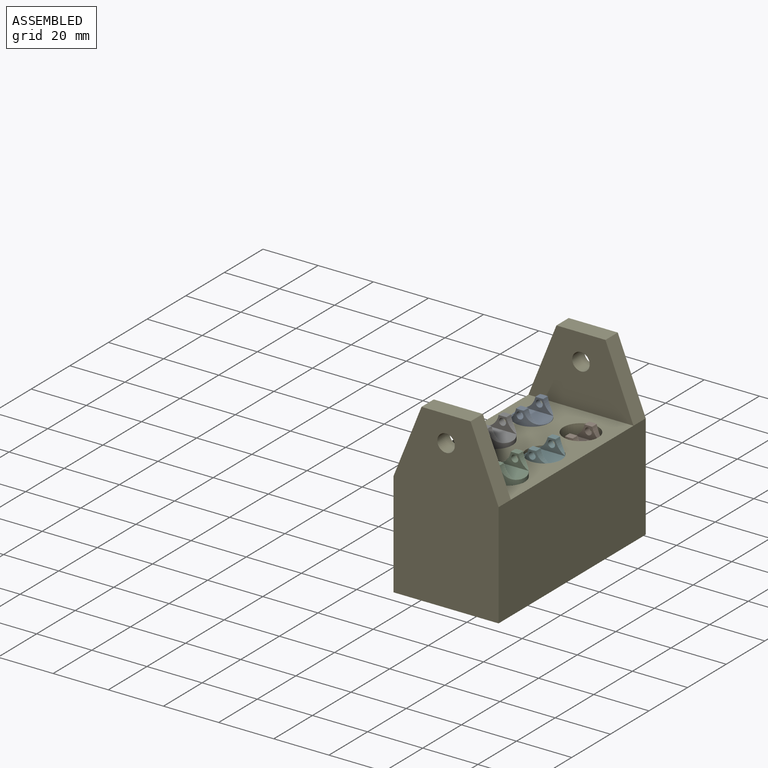
[diagram: assembled view]
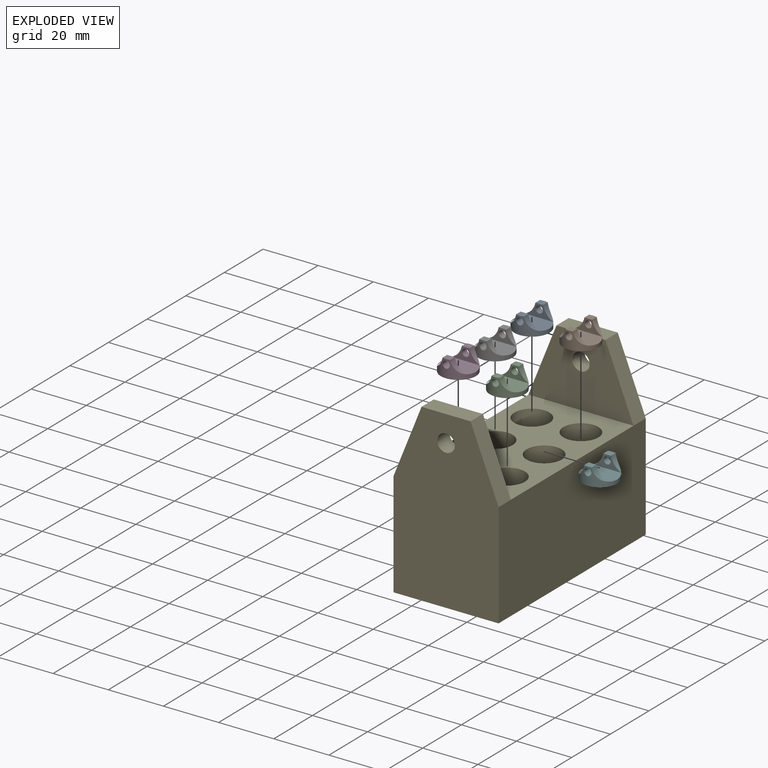
[diagram: exploded view]
GUIDED TOUR — MATED ASSEMBLY (Onshape document 027a641c59801a9dba8c58a0, AutoMate assembly 027a641c59801a9dba8c58a0_f3b62f6400cd788a0580ad58_e7f41061938ddfcc41506e2b_default)

This assembly has 7 components, labeled P0..P6 below (a component is one placed occurrence of a part; the same part can appear more than once), held together by 5 mates. A mate is a constraint between two components; its type names the relative motion it leaves free:
  SLIDER — leaves translation along the listed axis free.
Axis/direction vectors are unit vectors and 'through' points are millimeter coordinates, both in the assembly's world frame.

MATES
  1. SLIDER "Slider 4": P6 <-> P4, axis (0.000, 0.000, -1.000) through (-17.78, 0.00, 0.00) mm
  2. SLIDER "Slider 5": P2 <-> P4, axis (0.000, 0.000, -1.000) through (0.00, -19.05, 0.00) mm
  3. SLIDER "Slider 6": P3 <-> P4, axis (0.000, 0.000, -1.000) through (-17.78, -19.05, -3.06) mm
  4. SLIDER "Slider 3": P0 <-> P4, axis (0.000, 0.000, -1.000) through (-17.78, 19.05, -1.30) mm
  5. SLIDER "Slider 1": P1 <-> P4, axis (0.000, 0.000, -1.000) through (0.00, 19.05, -5.63) mm

ASSEMBLY ORDER
  1. P5 — the base component [order verified]
  2. P3 [order verified]
  3. P0 [order verified]
  4. P4 [order verified]
  5. P1 [order verified]
  6. P6 [order verified]
  7. P2 [order verified]
Order-tag legend:
  [order verified] — this step's position reverses a verified removal order: the component was checked to insert without passing through the ones already placed.

Of the 7 components, 1 carries the full construction recipe — the FeatureScript program that regenerates the part's solid from scratch; the rest are supplied as boundary geometry only.
Each toured component is shown spotlighted twice — in the assembled view, then in the exploded view, where a leader line traces a displaced component back to its assembled socket (saturated green if recipe-attached, orange if geometry-only; every other component desaturated gray) — followed by its recipe or geometry summary and the mates that hold it.
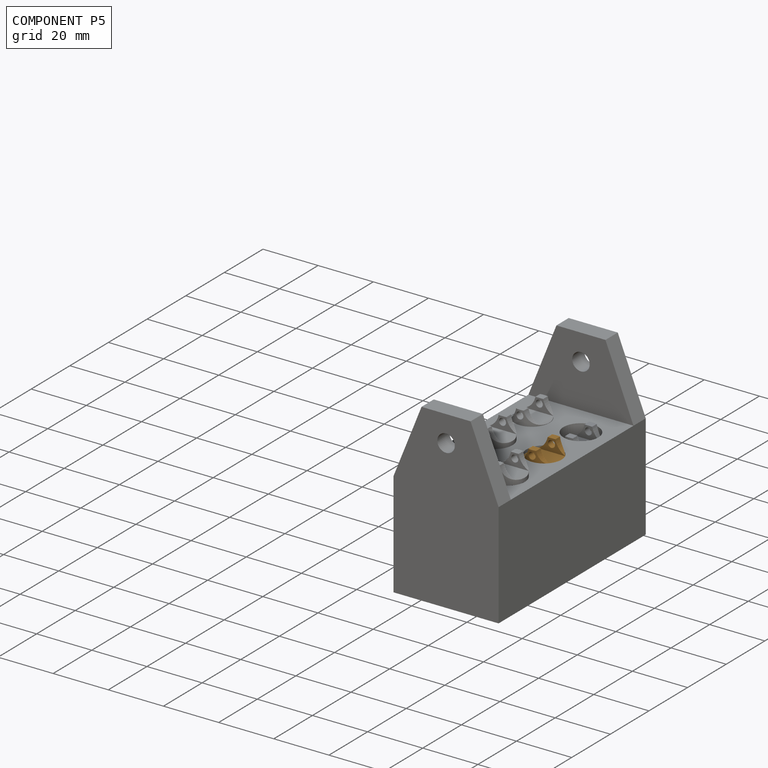
[diagram: component P5 — assembled]
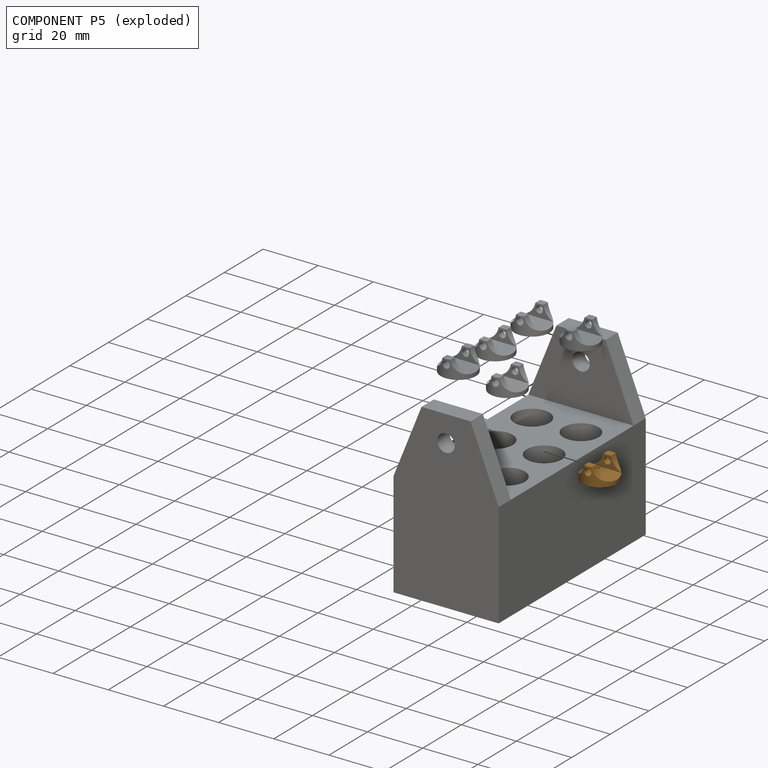
[diagram: component P5 — exploded]
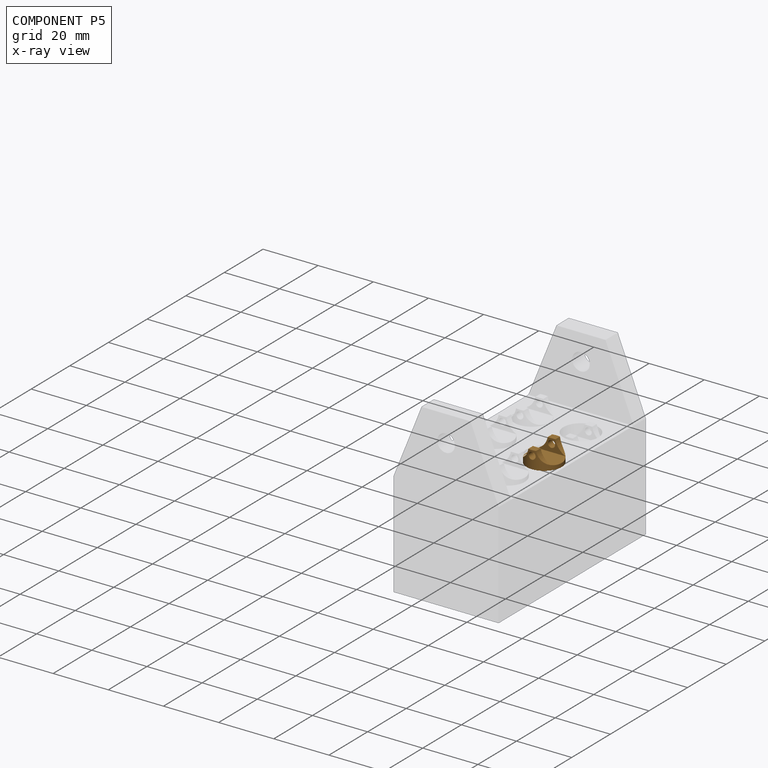
[diagram: component P5 — x-ray view]
COMPONENT P5 — geometry summary (no construction recipe available for this part):
  bounding box: 12.7 x 12.7 x 6.4 mm
  B-rep topology: 1 solid, 15 faces, 84 edges
  volume: 306 mm^3 (30% of its bounding box)
  symmetry: 2-fold rotationally symmetric about the z axis; mirror-symmetric across its x mid-plane, y mid-plane
Held by: no mates (free).
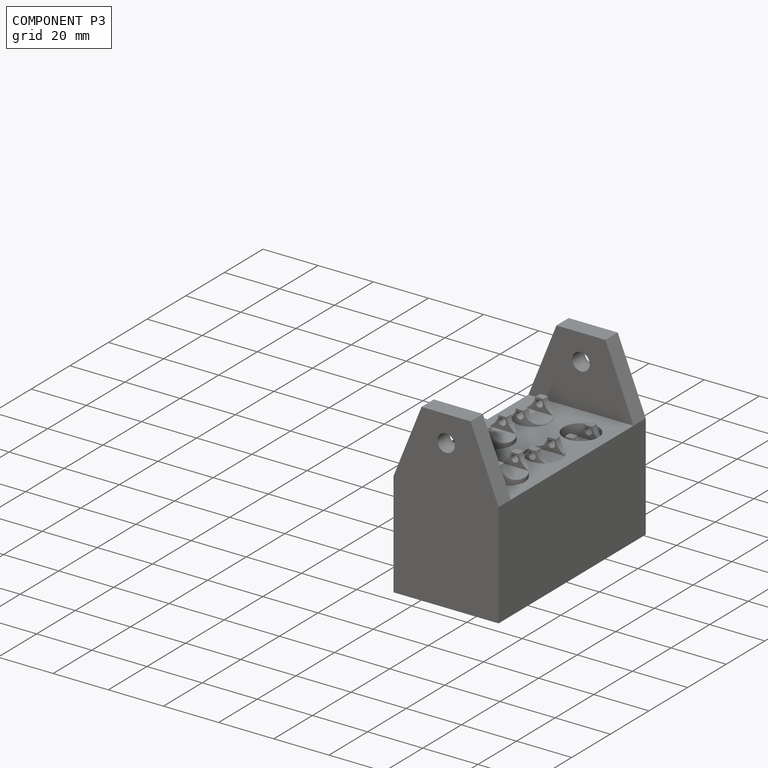
[diagram: component P3 — assembled]
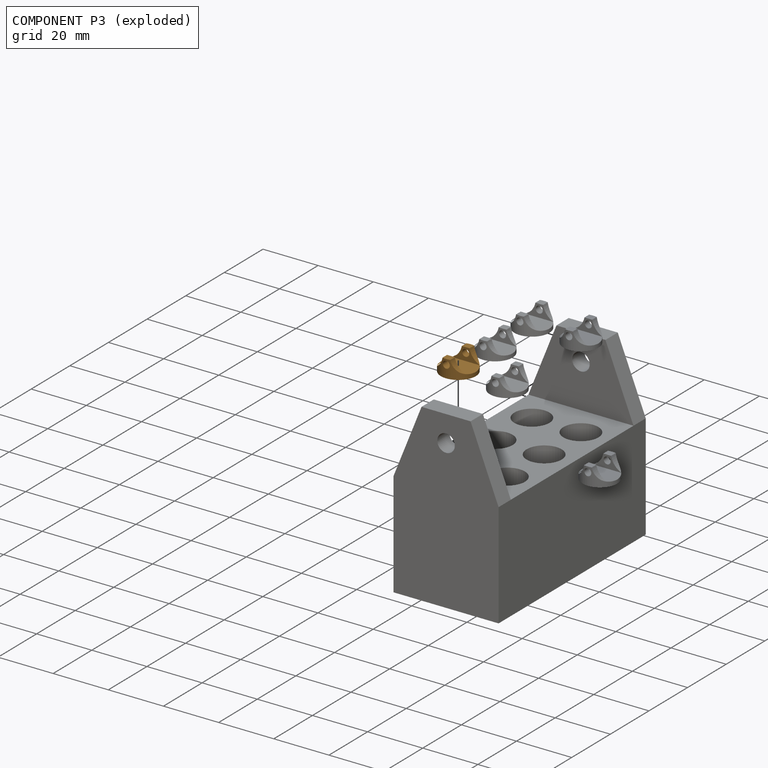
[diagram: component P3 — exploded]
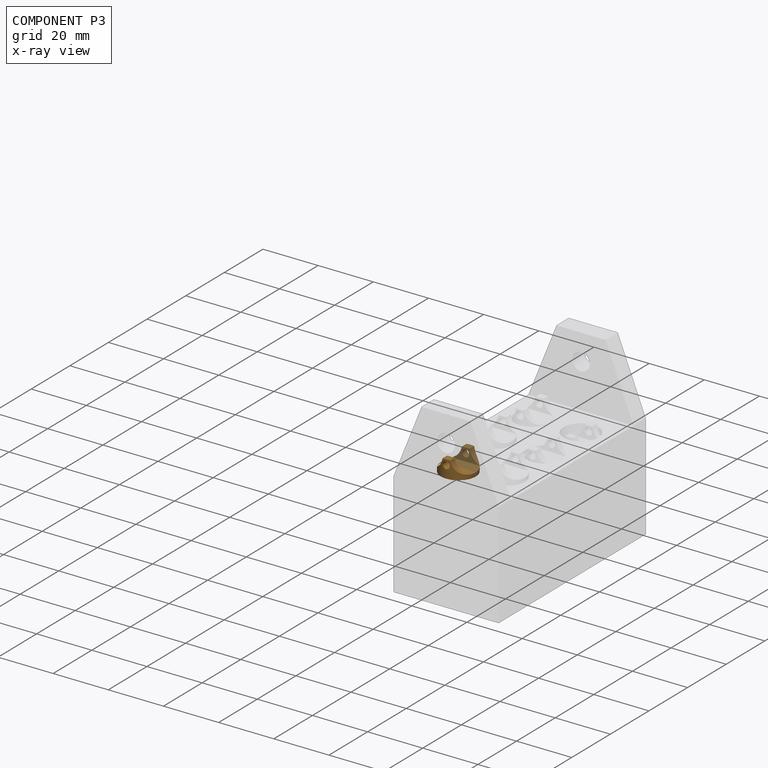
[diagram: component P3 — x-ray view]
COMPONENT P3 — geometry summary (no construction recipe available for this part):
  bounding box: 12.7 x 12.7 x 6.4 mm
  B-rep topology: 1 solid, 15 faces, 84 edges
  volume: 306 mm^3 (30% of its bounding box)
  symmetry: 2-fold rotationally symmetric about the z axis; mirror-symmetric across its x mid-plane, y mid-plane
Held by: SLIDER mate "Slider 6" to P4.
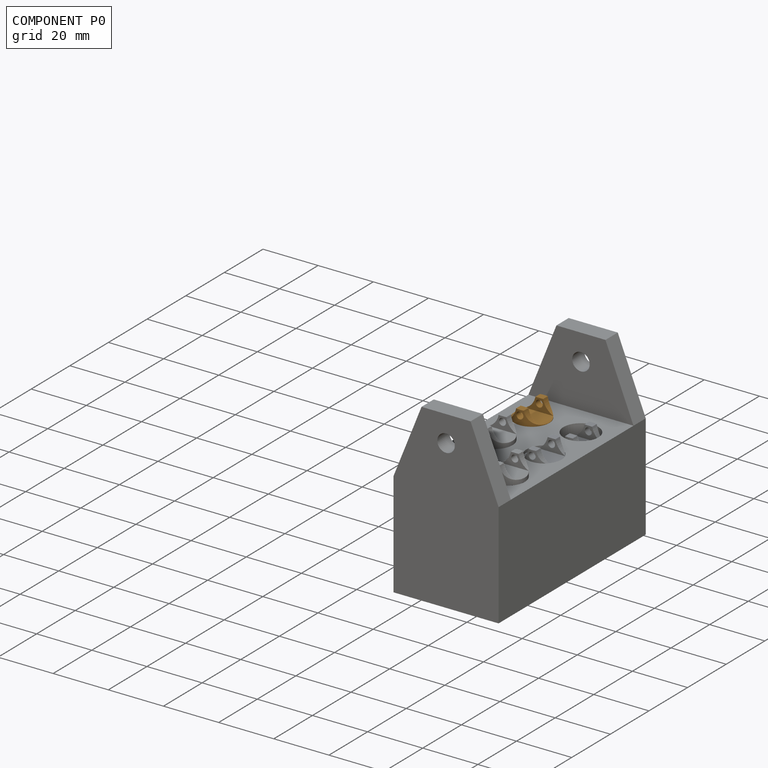
[diagram: component P0 — assembled]
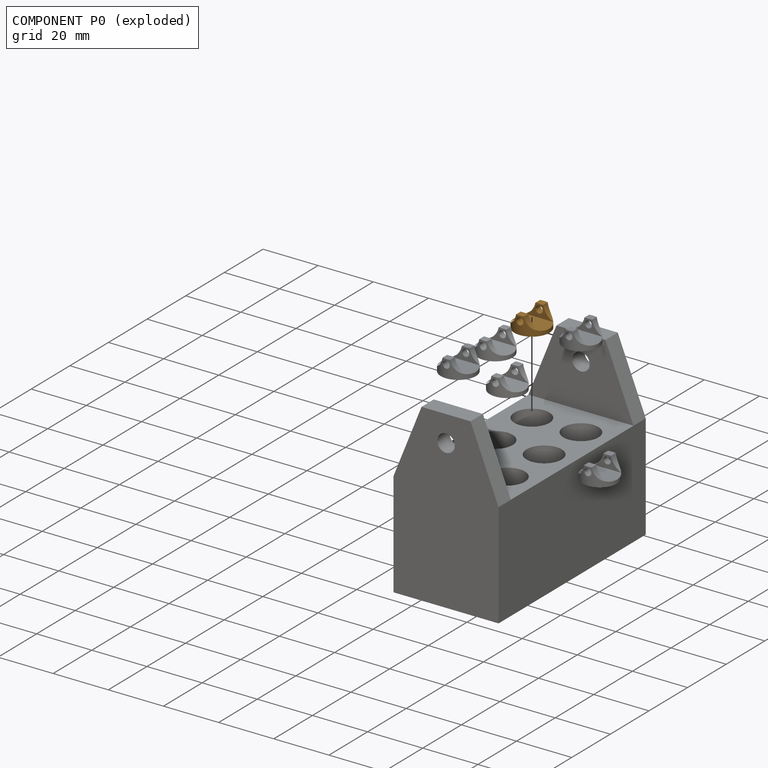
[diagram: component P0 — exploded]
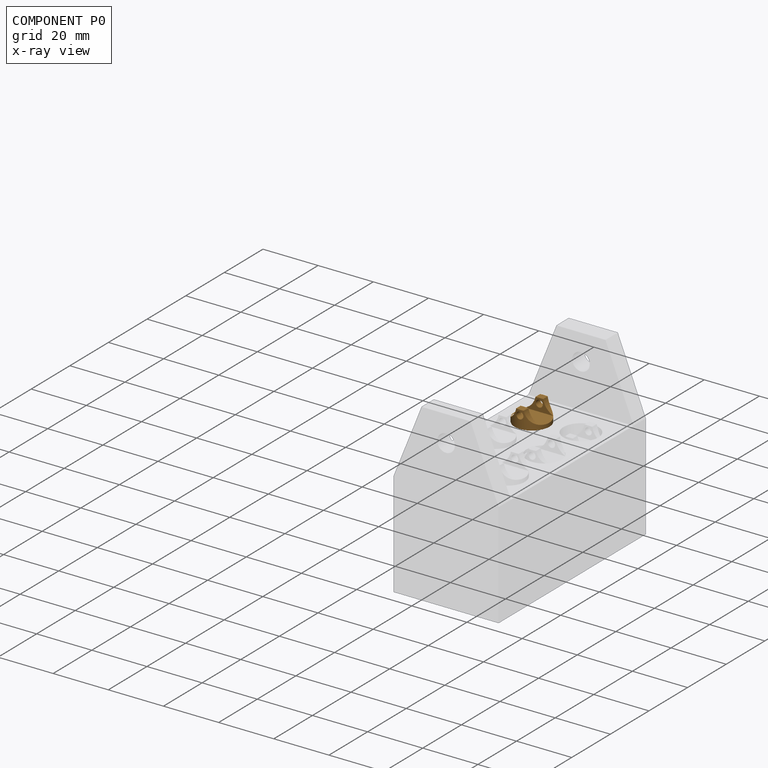
[diagram: component P0 — x-ray view]
COMPONENT P0 — geometry summary (no construction recipe available for this part):
  bounding box: 12.7 x 12.7 x 6.4 mm
  B-rep topology: 1 solid, 15 faces, 84 edges
  volume: 306 mm^3 (30% of its bounding box)
  symmetry: 2-fold rotationally symmetric about the z axis; mirror-symmetric across its x mid-plane, y mid-plane
Held by: SLIDER mate "Slider 3" to P4.
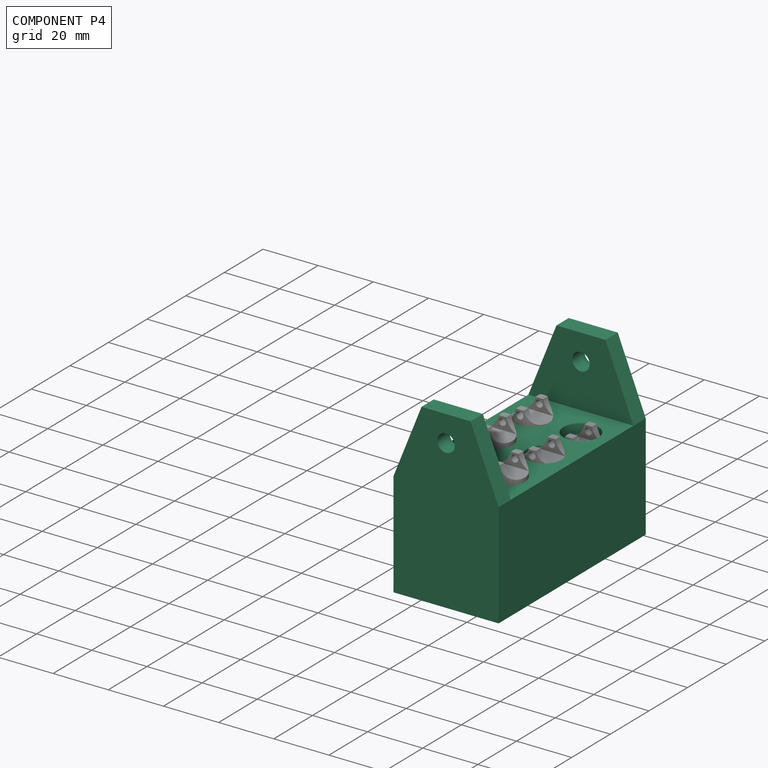
[diagram: component P4 — assembled]
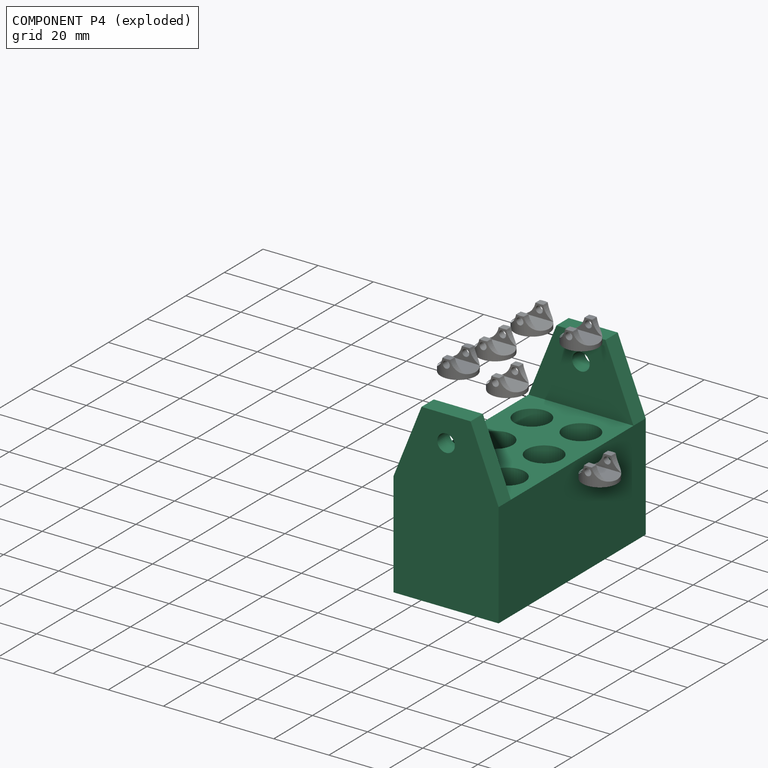
[diagram: component P4 — exploded]
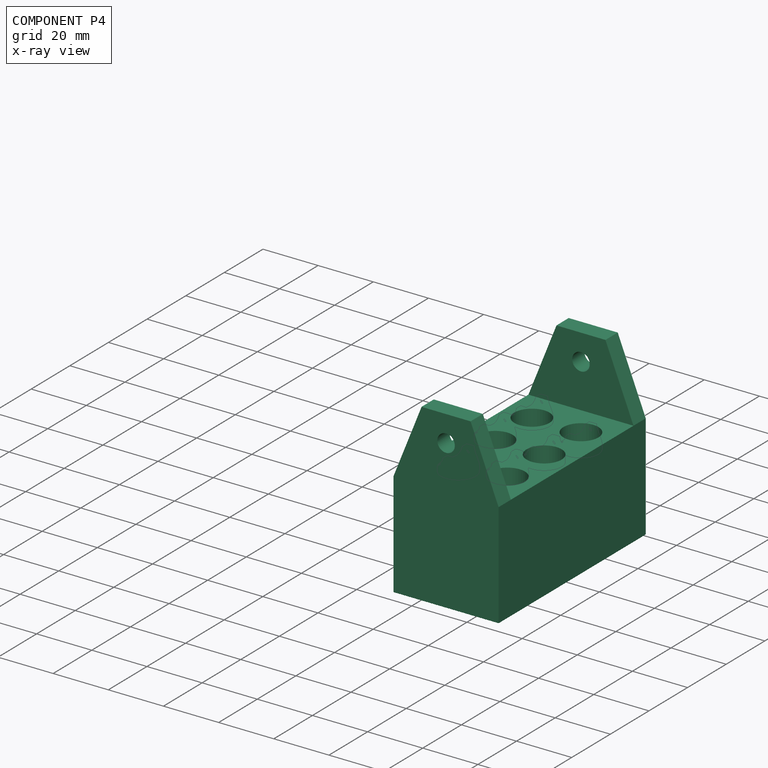
[diagram: component P4 — x-ray view]
COMPONENT P4 — recipe-attached (CADFS 00143169, mesh-verified: the recipe's output STEP matches this component's geometry to below the mesh-comparison resolution (tessellation chordal tolerance ~0.159 mm)).
Held by: SLIDER mate "Slider 4" to P6; SLIDER mate "Slider 5" to P2; SLIDER mate "Slider 6" to P3; SLIDER mate "Slider 3" to P0; SLIDER mate "Slider 1" to P1.
Construction recipe (FeatureScript — the CAD program that rebuilds this solid; sketch coordinates are in the units given by the * unit suffixes, e.g. mm):

FeatureScript 1511;
import(path : "onshape/std/geometry.fs", version : "1511.0");
import(path : "onshape/std/common.fs", version : "1511.0");
const mm = millimeter;
const VERTEX = EntityType.VERTEX;
const EDGE = EntityType.EDGE;
const FACE = EntityType.FACE;
const BODY = EntityType.BODY;
function v(x, y){return vector(x, y);}
function OD(order){return orderDisambiguation(order);}
function OSD(set){return originalSetDisambiguation(set);}
function TD(topology){return topologyDisambiguation(topology);}
function TDD(query){return trueDependencyDisambiguation(query);}
function sQuery(a, b, c) {return sketchEntityQuery(a, b, c);}

annotation { "Feature Type Name" : "Feature", "Feature Type Description" : "" }
export const myFeature = defineFeature(function(context is Context, id is Id, definition is map)
    precondition{}
    {
        {
            var Q0;
            Q0=qCreatedBy(makeId("Top.planeOp"),FACE);
            var sketch = newSketch(context, id + "F0", { "sketchPlane" : qUnion([Q0])});
            skLineSegment(sketch, "E0.bottom", {"start": v(0, 0) * mm, "end": v(38.1, 0) * mm});
            skLineSegment(sketch, "E0.top", {"start": v(0, 76.2) * mm, "end": v(38.1, 76.2) * mm});
            skLineSegment(sketch, "E0.left", {"start": v(0, 0) * mm, "end": v(0, 76.2) * mm});
            skLineSegment(sketch, "E0.right", {"start": v(38.1, 0) * mm, "end": v(38.1, 76.2) * mm});
            skCircle(sketch, "E1", {"center": v(10.16, 38.1) * mm, "radius": 6.35 * mm});
            skCircle(sketch, "E2", {"center": v(10.16, 57.15) * mm, "radius": 6.35 * mm});
            skCircle(sketch, "E3", {"center": v(10.16, 19.05) * mm, "radius": 6.35 * mm});
            skCircle(sketch, "E4", {"center": v(27.94, 19.05) * mm, "radius": 6.35 * mm});
            skCircle(sketch, "E5", {"center": v(27.94, 38.1) * mm, "radius": 6.35 * mm});
            skCircle(sketch, "E6", {"center": v(27.94, 57.15) * mm, "radius": 6.35 * mm});
            skSolve(sketch);
        }
        {
            var Q0;
            Q0=makeQuery(id+"F0.imprint","IMPRINT",FACE,{"disambiguationData":[TD([[makeQuery(id+"F0.imprint","IMPRINT",EDGE,{"derivedFrom":sQuery(id+"F0.wireOp",EDGE,"E0.bottom")}),1.0]])]});
            extrude(context, id + "F1", {"entities" : qUnion([Q0]), "depth" : 38.1 * mm});
        }
        {
            var Q0;
            Q0=makeQuery(id+"F0.imprint","IMPRINT",FACE,{"disambiguationData":[TD([[makeQuery(id+"F0.imprint","IMPRINT",EDGE,{"derivedFrom":sQuery(id+"F0.wireOp",EDGE,"E2")}),1.0]])]});
            var Q1;
            Q1=makeQuery(id+"F0.imprint","IMPRINT",FACE,{"disambiguationData":[TD([[makeQuery(id+"F0.imprint","IMPRINT",EDGE,{"derivedFrom":sQuery(id+"F0.wireOp",EDGE,"E6")}),1.0]])]});
            var Q2;
            Q2=makeQuery(id+"F0.imprint","IMPRINT",FACE,{"disambiguationData":[TD([[makeQuery(id+"F0.imprint","IMPRINT",EDGE,{"derivedFrom":sQuery(id+"F0.wireOp",EDGE,"E5")}),1.0]])]});
            var Q3;
            Q3=makeQuery(id+"F0.imprint","IMPRINT",FACE,{"disambiguationData":[TD([[makeQuery(id+"F0.imprint","IMPRINT",EDGE,{"derivedFrom":sQuery(id+"F0.wireOp",EDGE,"E3")}),1.0]])]});
            var Q4;
            Q4=makeQuery(id+"F0.imprint","IMPRINT",FACE,{"disambiguationData":[TD([[makeQuery(id+"F0.imprint","IMPRINT",EDGE,{"derivedFrom":sQuery(id+"F0.wireOp",EDGE,"E4")}),1.0]])]});
            var Q5;
            Q5=makeQuery(id+"F0.imprint","IMPRINT",FACE,{"disambiguationData":[TD([[makeQuery(id+"F0.imprint","IMPRINT",EDGE,{"derivedFrom":sQuery(id+"F0.wireOp",EDGE,"E1")}),1.0]])]});
            extrude(context, id + "F2", {"entities" : qUnion([Q0, Q1, Q2, Q3, Q4, Q5]), "operationType" : NewBodyOperationType.ADD, "depth" : 12.7 * mm});
        }
        {
            var Q0;
            Q0=makeQuery(id+"F1.opExtrude","CAP_FACE",FACE,{"disambiguationData":[OSD([sQuery(id+"F0.wireOp",EDGE,"E0.bottom"),sQuery(id+"F0.wireOp",EDGE,"E0.top"),sQuery(id+"F0.wireOp",EDGE,"E0.left"),sQuery(id+"F0.wireOp",EDGE,"E0.right"),sQuery(id+"F0.wireOp",EDGE,"E1"),sQuery(id+"F0.wireOp",EDGE,"E2"),sQuery(id+"F0.wireOp",EDGE,"E3"),sQuery(id+"F0.wireOp",EDGE,"E4"),sQuery(id+"F0.wireOp",EDGE,"E5"),sQuery(id+"F0.wireOp",EDGE,"E6")])],"isStart":false});
            var sketch = newSketch(context, id + "F3", { "sketchPlane" : qUnion([Q0])});
            skLineSegment(sketch, "E7.bottom", {"start": v(0, 0) * mm, "end": v(38.1, 0) * mm});
            skLineSegment(sketch, "E7.top", {"start": v(0, 6.35) * mm, "end": v(38.1, 6.35) * mm});
            skLineSegment(sketch, "E7.left", {"start": v(0, 0) * mm, "end": v(0, 6.35) * mm});
            skLineSegment(sketch, "E7.right", {"start": v(38.1, 0) * mm, "end": v(38.1, 6.35) * mm});
            skLineSegment(sketch, "E8.bottom", {"start": v(0, 76.2) * mm, "end": v(38.1, 76.2) * mm});
            skLineSegment(sketch, "E8.top", {"start": v(0, 69.85) * mm, "end": v(38.1, 69.85) * mm});
            skLineSegment(sketch, "E8.left", {"start": v(0, 76.2) * mm, "end": v(0, 69.85) * mm});
            skLineSegment(sketch, "E8.right", {"start": v(38.1, 76.2) * mm, "end": v(38.1, 69.85) * mm});
            skSolve(sketch);
        }
        {
            var Q0;
            Q0=makeQuery(id+"F3.imprint","IMPRINT",FACE,{"disambiguationData":[TD([[makeQuery(id+"F3.imprint","IMPRINT",EDGE,{"derivedFrom":sQuery(id+"F3.wireOp",EDGE,"E8.bottom")}),-1.0]])]});
            var Q1;
            Q1=makeQuery(id+"F3.imprint","IMPRINT",FACE,{"disambiguationData":[TD([[makeQuery(id+"F3.imprint","IMPRINT",EDGE,{"derivedFrom":sQuery(id+"F3.wireOp",EDGE,"E7.bottom")}),1.0]])]});
            extrude(context, id + "F4", {"entities" : qUnion([Q0, Q1]), "operationType" : NewBodyOperationType.ADD, "depth" : 25.4 * mm});
        }
        {
            var Q0;
            Q0=makeQuery(id+"F4.opExtrude","CAP_EDGE",EDGE,{"disambiguationData":[OSD([sQuery(id+"F3.wireOp",EDGE,"E8.right")])],"isStart":false});
            var Q1;
            Q1=makeQuery(id+"F4.opExtrude","CAP_EDGE",EDGE,{"disambiguationData":[OSD([sQuery(id+"F3.wireOp",EDGE,"E8.left")])],"isStart":false});
            chamfer(context, id + "F5", {"entities" : qUnion([Q0, Q1]), "chamferType" : ChamferType.TWO_OFFSETS, "width1" : 25.4 * mm, "oppositeDirection" : true, "width2" : 10.16 * mm, "tangentPropagation" : true});
        }
        {
            var Q0;
            Q0=makeQuery(id+"F4.opExtrude","CAP_EDGE",EDGE,{"disambiguationData":[OSD([sQuery(id+"F3.wireOp",EDGE,"E7.right")])],"isStart":false});
            var Q1;
            Q1=makeQuery(id+"F4.opExtrude","CAP_EDGE",EDGE,{"disambiguationData":[OSD([sQuery(id+"F3.wireOp",EDGE,"E7.left")])],"isStart":false});
            chamfer(context, id + "F6", {"entities" : qUnion([Q0, Q1]), "chamferType" : ChamferType.TWO_OFFSETS, "width1" : 25.4 * mm, "oppositeDirection" : true, "width2" : 10.16 * mm, "tangentPropagation" : true});
        }
        {
            var Q0;
            Q0=makeQuery(id+"F4.boolean.opBoolean","MERGE",FACE,{"derivedFrom":[makeQuery(id+"F1.opExtrude","SWEPT_FACE",FACE,{"disambiguationData":[OSD([sQuery(id+"F0.wireOp",EDGE,"E0.top")])]}),makeQuery(id+"F4.opExtrude","SWEPT_FACE",FACE,{"disambiguationData":[OSD([sQuery(id+"F3.wireOp",EDGE,"E8.bottom")])]})]});
            var sketch = newSketch(context, id + "F7", { "sketchPlane" : qUnion([Q0])});
            skCircle(sketch, "E9", {"center": v(-19.05, 53.98) * mm, "radius": 3.18 * mm});
            skSolve(sketch);
        }
        {
            var Q0;
            Q0=makeQuery(id+"F7.imprint","IMPRINT",FACE,{"disambiguationData":[TD([[makeQuery(id+"F7.imprint","IMPRINT",EDGE,{"derivedFrom":sQuery(id+"F7.wireOp",EDGE,"E9")}),1.0]])]});
            extrude(context, id + "F8", {"entities" : qUnion([Q0]), "operationType" : NewBodyOperationType.REMOVE, "oppositeDirection" : true, "depth" : 105.84 * mm});
        }
    });
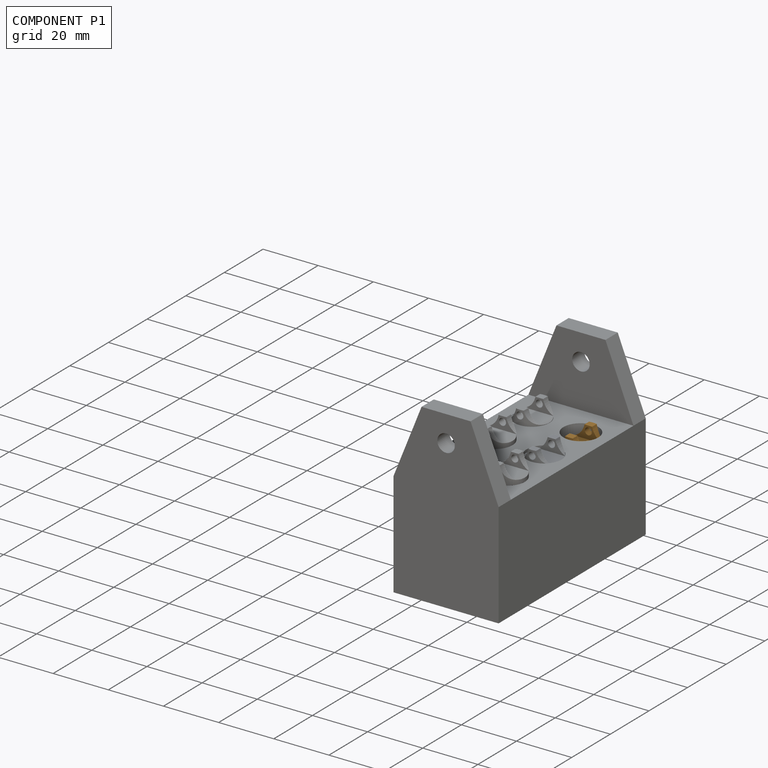
[diagram: component P1 — assembled]
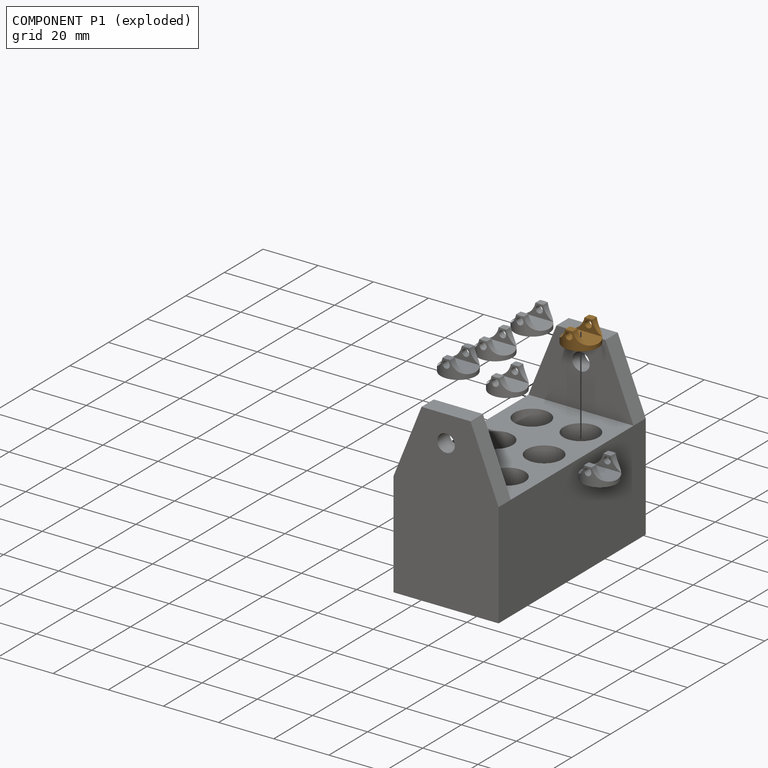
[diagram: component P1 — exploded]
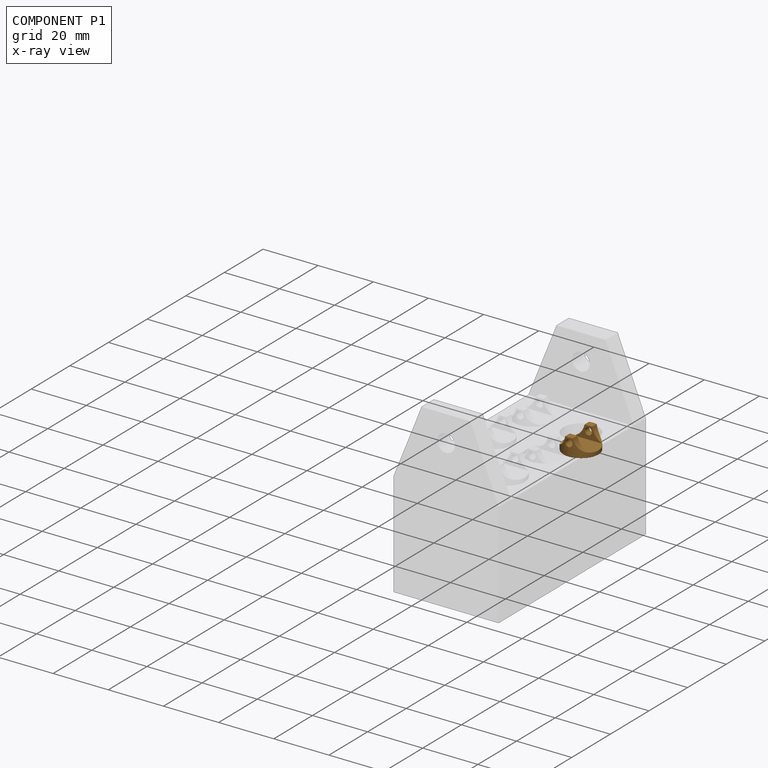
[diagram: component P1 — x-ray view]
COMPONENT P1 — geometry summary (no construction recipe available for this part):
  bounding box: 12.7 x 12.7 x 6.4 mm
  B-rep topology: 1 solid, 15 faces, 84 edges
  volume: 306 mm^3 (30% of its bounding box)
  symmetry: 2-fold rotationally symmetric about the z axis; mirror-symmetric across its x mid-plane, y mid-plane
Held by: SLIDER mate "Slider 1" to P4.
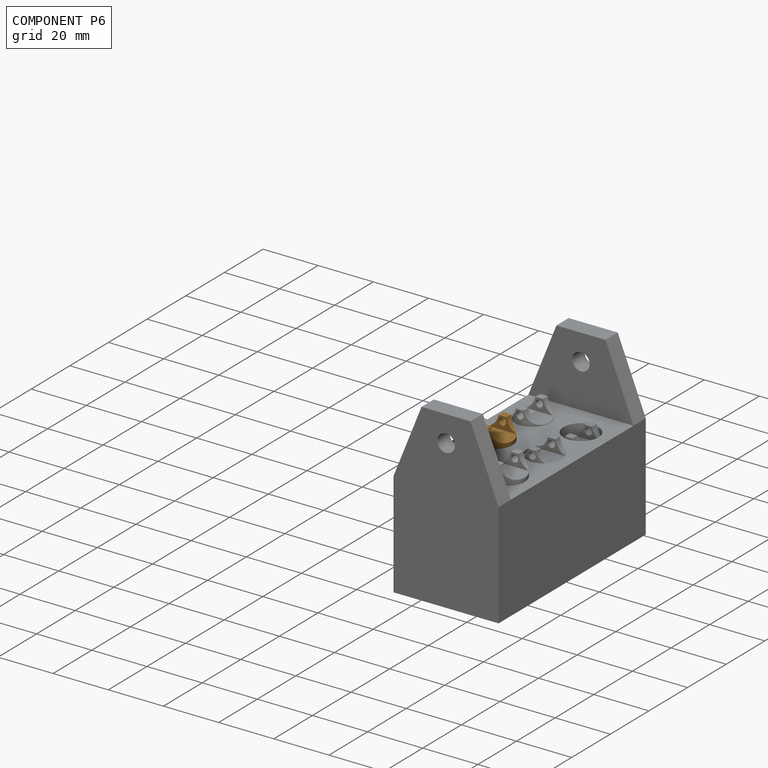
[diagram: component P6 — assembled]
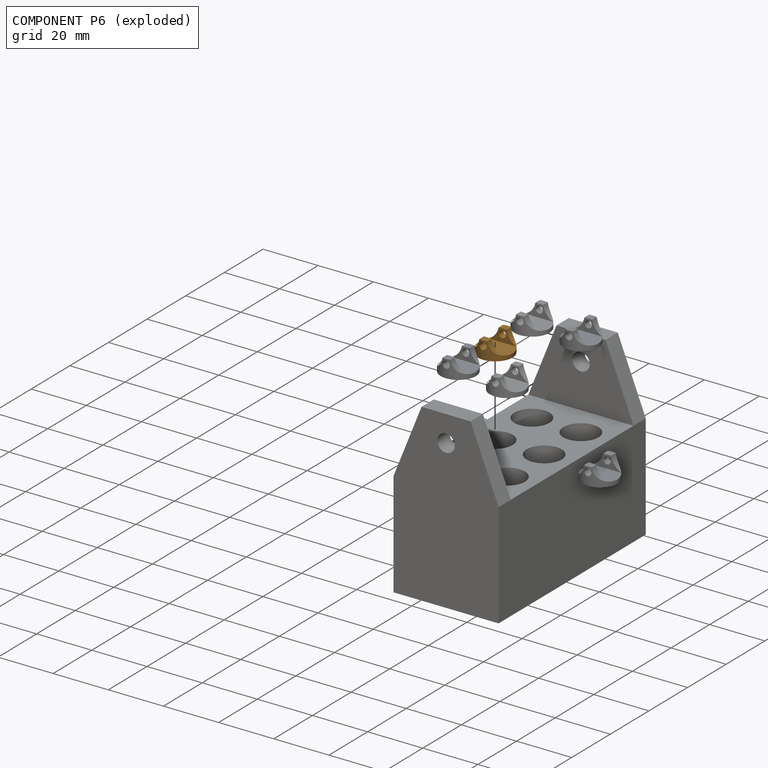
[diagram: component P6 — exploded]
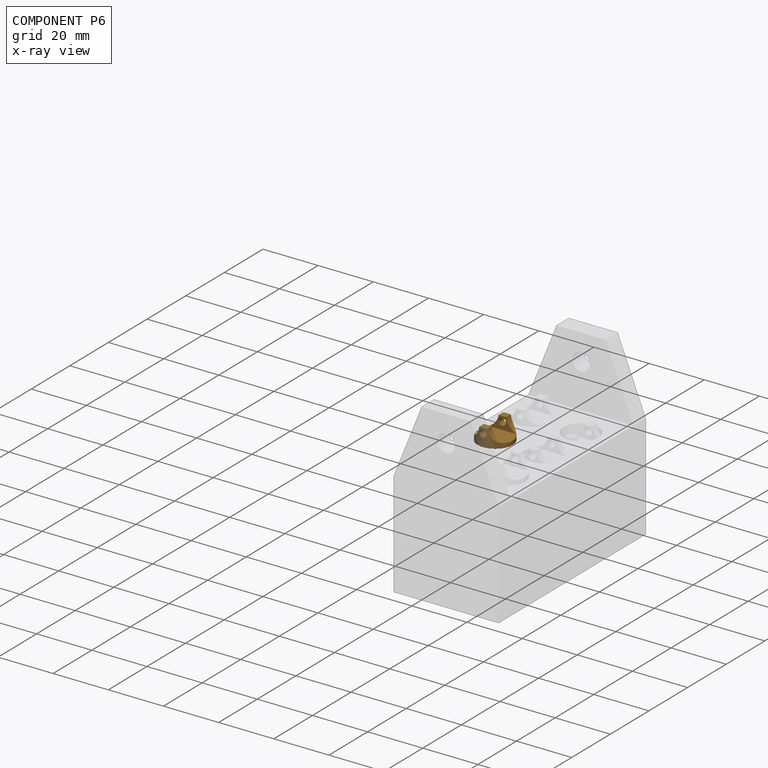
[diagram: component P6 — x-ray view]
COMPONENT P6 — geometry summary (no construction recipe available for this part):
  bounding box: 12.7 x 12.7 x 6.4 mm
  B-rep topology: 1 solid, 15 faces, 84 edges
  volume: 306 mm^3 (30% of its bounding box)
  symmetry: 2-fold rotationally symmetric about the z axis; mirror-symmetric across its x mid-plane, y mid-plane
Held by: SLIDER mate "Slider 4" to P4.
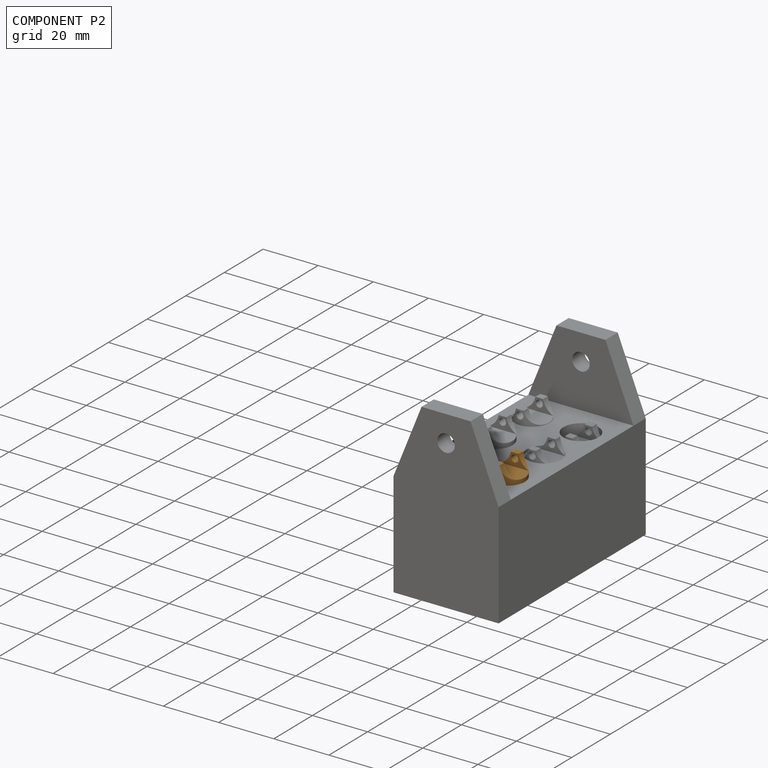
[diagram: component P2 — assembled]
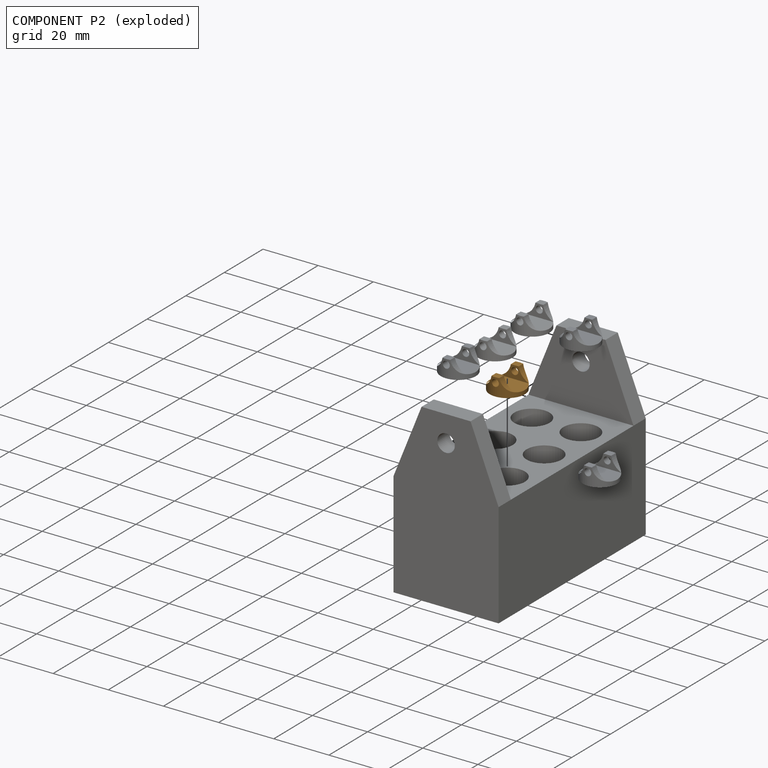
[diagram: component P2 — exploded]
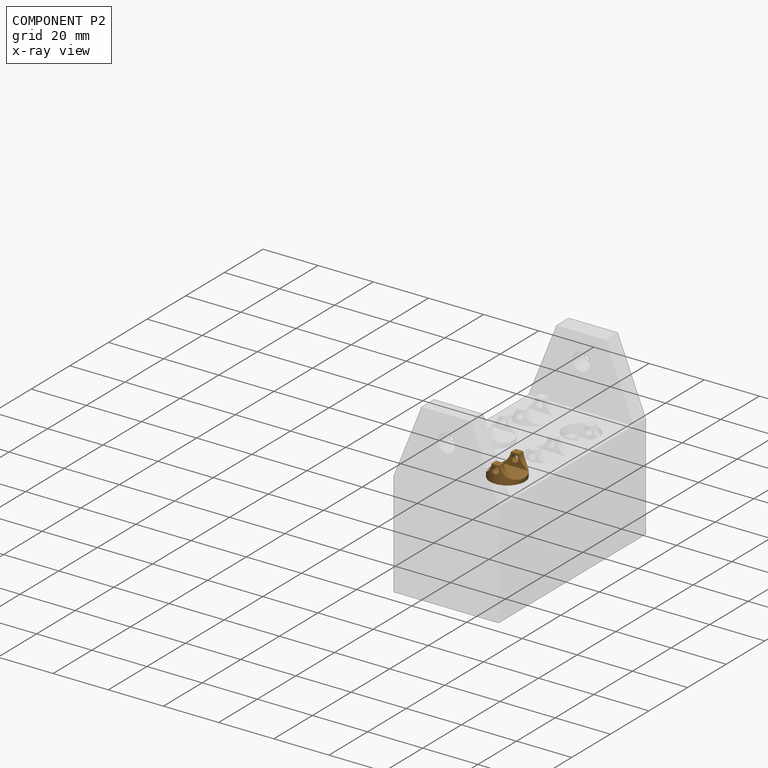
[diagram: component P2 — x-ray view]
COMPONENT P2 — geometry summary (no construction recipe available for this part):
  bounding box: 12.7 x 12.7 x 6.4 mm
  B-rep topology: 1 solid, 15 faces, 84 edges
  volume: 306 mm^3 (30% of its bounding box)
  symmetry: 2-fold rotationally symmetric about the z axis; mirror-symmetric across its x mid-plane, y mid-plane
Held by: SLIDER mate "Slider 5" to P4.
PROVENANCE & LICENSES
Assembly (occurrences, transforms, mates, per-part STEP geometry): AutoMate dataset, Zenodo record 7776208, CC0.
Construction recipes: CADFS (HuggingFace VladPyatov/CADFS, CC-BY-4.0, layered over the ABC dataset), FeatureScript reconstruction programs keyed by ABC model id.
Join: ABC meta listings map ABC model id -> Onshape documentId; within a shared document, parts are matched by geometric signature (bounding-box dims + volume at 0.1% relative tolerance, exact B-rep face/solid counts).
Verification: 1 of this assembly's 7 components carries a recipe attachment, and every attachment is mesh-verified: the CADFS STEP and the AutoMate member STEP were compared as meshes in their shared local frame (symmetric sampled-point-to-mesh distance); worst across the 1 attachment: below the mesh-comparison resolution (tessellation chordal tolerance ~0.159 mm) on a 106 mm part.
Renders: orthographic iso camera (az 35 / el 25); the floor grid conveys scale (grid pitch printed in each image; no ruler). In the exploded view each component is displaced by its stored offset vector: the offsets alone carry the explosion direction (mate normal/axis signs are not orientation cues and do not encode it), and separation distances are assigned per mate-chain, not proportionally to assembly-order depth.
